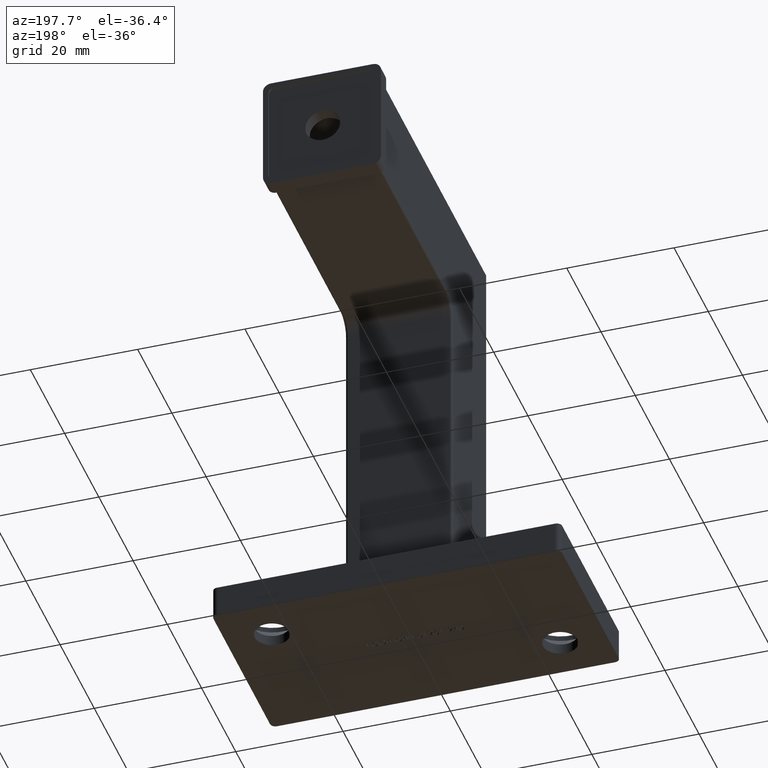
[diagram: clean part render]
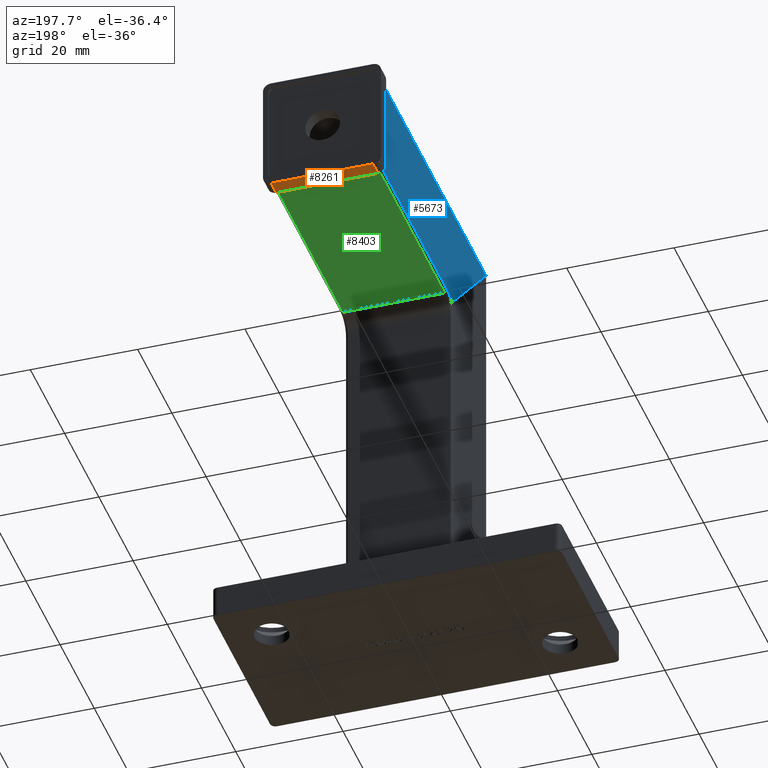
[diagram: same view with three faces highlighted in distinct colors, each labeled with its STEP entity id]
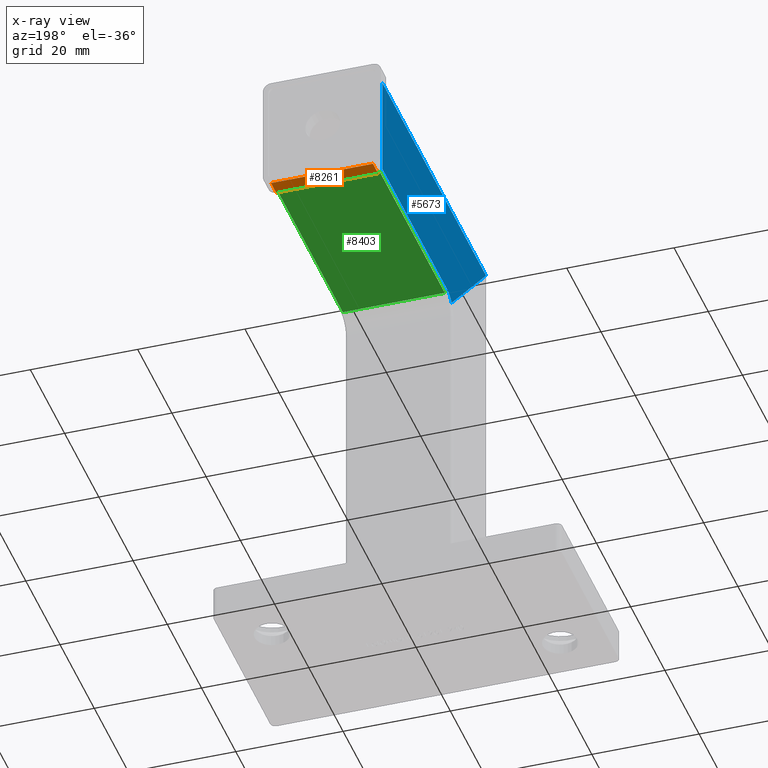
[diagram: x-ray of the same camera — body ghosted, the three highlighted faces saturated]
A machine part, auxiliary view with three faces highlighted in distinct colors.
The next image is the same camera in x-ray (body ghosted, the three faces saturated) — at least one of them is partly hidden behind the body in this view.
Their STEP definitions:

[orange] entity #8261 — the highlighted planar face has unit normal (0, 0, -1).
#506 = CARTESIAN_POINT ( 'NONE',  ( -9.500000000000005329, 51.99999999999999289, 63.99999999999998579 ) ) ;
#2002 = VECTOR ( 'NONE', #7783, 1000.000000000000000 ) ;
#2112 = EDGE_CURVE ( 'NONE', #7233, #5410, #11485, .T. ) ;
#2520 = CARTESIAN_POINT ( 'NONE',  ( -11.00000000000000533, 51.99999999999999289, 63.99999999999998579 ) ) ;
#2649 = DIRECTION ( 'NONE',  ( -1.000000000000000000, 0.000000000000000000, -0.000000000000000000 ) ) ;
#3089 = EDGE_LOOP ( 'NONE', ( #10533, #9796, #11411, #4968 ) ) ;
#3157 = CARTESIAN_POINT ( 'NONE',  ( -11.00000000000000533, 54.99999999999999289, 63.99999999999998579 ) ) ;
#3249 = VERTEX_POINT ( 'NONE', #12267 ) ;
#3403 = AXIS2_PLACEMENT_3D ( 'NONE', #5629, #10825, #2649 ) ;
#3675 = FACE_OUTER_BOUND ( 'NONE', #3089, .T. ) ;
#4264 = EDGE_CURVE ( 'NONE', #3249, #4418, #7500, .T. ) ;
#4418 = VERTEX_POINT ( 'NONE', #11831 ) ;
#4470 = EDGE_CURVE ( 'NONE', #5410, #4418, #10276, .T. ) ;
#4528 = CARTESIAN_POINT ( 'NONE',  ( -9.500000000000005329, 51.99999999999999289, 63.99999999999998579 ) ) ;
#4968 = ORIENTED_EDGE ( 'NONE', *, *, #4470, .T. ) ;
#5410 = VERTEX_POINT ( 'NONE', #4528 ) ;
#5629 = CARTESIAN_POINT ( 'NONE',  ( -11.00000000000000533, 51.99999999999999289, 63.99999999999998579 ) ) ;
#6346 = VECTOR ( 'NONE', #9368, 1000.000000000000000 ) ;
#6700 = CARTESIAN_POINT ( 'NONE',  ( 9.499999999999992895, 51.99999999999999289, 63.99999999999998579 ) ) ;
#6724 = VECTOR ( 'NONE', #9771, 1000.000000000000000 ) ;
#6836 = PLANE ( 'NONE',  #3403 ) ;
#7008 = VECTOR ( 'NONE', #7290, 1000.000000000000000 ) ;
#7233 = VERTEX_POINT ( 'NONE', #6700 ) ;
#7290 = DIRECTION ( 'NONE',  ( -1.000000000000000000, -0.000000000000000000, -0.000000000000000000 ) ) ;
#7500 = LINE ( 'NONE', #3157, #7008 ) ;
#7632 = LINE ( 'NONE', #8303, #6346 ) ;
#7783 = DIRECTION ( 'NONE',  ( 0.000000000000000000, 1.000000000000000000, 0.000000000000000000 ) ) ;
#8261 = ADVANCED_FACE ( 'NONE', ( #3675 ), #6836, .T. ) ;
#8303 = CARTESIAN_POINT ( 'NONE',  ( 9.499999999999992895, 51.99999999999999289, 63.99999999999998579 ) ) ;
#9368 = DIRECTION ( 'NONE',  ( -0.000000000000000000, -1.000000000000000000, -0.000000000000000000 ) ) ;
#9771 = DIRECTION ( 'NONE',  ( -1.000000000000000000, -0.000000000000000000, -0.000000000000000000 ) ) ;
#9796 = ORIENTED_EDGE ( 'NONE', *, *, #12533, .T. ) ;
#10276 = LINE ( 'NONE', #506, #2002 ) ;
#10533 = ORIENTED_EDGE ( 'NONE', *, *, #4264, .F. ) ;
#10825 = DIRECTION ( 'NONE',  ( 0.000000000000000000, 0.000000000000000000, -1.000000000000000000 ) ) ;
#11411 = ORIENTED_EDGE ( 'NONE', *, *, #2112, .T. ) ;
#11485 = LINE ( 'NONE', #2520, #6724 ) ;
#11831 = CARTESIAN_POINT ( 'NONE',  ( -9.500000000000005329, 54.99999999999999289, 63.99999999999998579 ) ) ;
#12267 = CARTESIAN_POINT ( 'NONE',  ( 9.499999999999992895, 54.99999999999999289, 63.99999999999998579 ) ) ;
#12533 = EDGE_CURVE ( 'NONE', #3249, #7233, #7632, .T. ) ;

[blue] entity #5673 — the highlighted planar face has unit normal (1, -0, 0).
#299 = DIRECTION ( 'NONE',  ( 1.734723475976807587E-16, 0.000000000000000000, -1.000000000000000000 ) ) ;
#552 = ORIENTED_EDGE ( 'NONE', *, *, #6668, .F. ) ;
#1491 = DIRECTION ( 'NONE',  ( 1.000000000000000000, -0.000000000000000000, 1.734723475976807587E-16 ) ) ;
#1899 = DIRECTION ( 'NONE',  ( 1.734723475976807587E-16, 0.000000000000000000, -1.000000000000000000 ) ) ;
#2194 = CIRCLE ( 'NONE', #11927, 3.500000000000003109 ) ;
#2227 = CARTESIAN_POINT ( 'NONE',  ( -10.00000000000000178, -9.142135623730959892, 84.14213562373093680 ) ) ;
#2329 = CARTESIAN_POINT ( 'NONE',  ( -9.999999999999998224, -9.142135623730959892, 65.50000000000000000 ) ) ;
#2970 = VERTEX_POINT ( 'NONE', #5776 ) ;
#3533 = PLANE ( 'NONE',  #4859 ) ;
#3694 = EDGE_CURVE ( 'NONE', #6324, #12341, #2194, .T. ) ;
#3701 = VECTOR ( 'NONE', #8452, 1000.000000000000000 ) ;
#4726 = ORIENTED_EDGE ( 'NONE', *, *, #3694, .T. ) ;
#4859 = AXIS2_PLACEMENT_3D ( 'NONE', #6590, #1491, #299 ) ;
#4903 = FACE_OUTER_BOUND ( 'NONE', #6215, .T. ) ;
#4974 = LINE ( 'NONE', #2227, #7058 ) ;
#5044 = DIRECTION ( 'NONE',  ( 0.000000000000000000, 1.000000000000000000, 0.000000000000000000 ) ) ;
#5337 = ORIENTED_EDGE ( 'NONE', *, *, #10600, .T. ) ;
#5556 = LINE ( 'NONE', #12191, #10599 ) ;
#5673 = ADVANCED_FACE ( 'NONE', ( #4903 ), #3533, .F. ) ;
#5711 = DIRECTION ( 'NONE',  ( 1.000000000000000000, -0.000000000000000000, 1.734723475976807587E-16 ) ) ;
#5776 = CARTESIAN_POINT ( 'NONE',  ( -9.999999999999998224, 50.99999999999997868, 65.50000000000000000 ) ) ;
#5794 = CARTESIAN_POINT ( 'NONE',  ( -9.999999999999998224, 12.99999999999999467, 65.50000000000000000 ) ) ;
#6086 = CARTESIAN_POINT ( 'NONE',  ( -9.999999999999998224, 10.52512626584706368, 64.47487373415292211 ) ) ;
#6094 = EDGE_CURVE ( 'NONE', #2970, #6324, #11503, .T. ) ;
#6215 = EDGE_LOOP ( 'NONE', ( #8647, #5337, #12768, #4726, #552 ) ) ;
#6324 = VERTEX_POINT ( 'NONE', #5794 ) ;
#6590 = CARTESIAN_POINT ( 'NONE',  ( -10.00000000000000178, -9.142135623730959892, 84.14213562373093680 ) ) ;
#6668 = EDGE_CURVE ( 'NONE', #8182, #12341, #4974, .T. ) ;
#6823 = CARTESIAN_POINT ( 'NONE',  ( -10.00000000000000178, 50.99999999999997868, 84.49999999999998579 ) ) ;
#6832 = DIRECTION ( 'NONE',  ( 0.000000000000000000, 0.000000000000000000, -1.000000000000000000 ) ) ;
#7058 = VECTOR ( 'NONE', #10652, 1000.000000000000000 ) ;
#7611 = CARTESIAN_POINT ( 'NONE',  ( -10.00000000000000178, -9.500000000000005329, 84.49999999999997158 ) ) ;
#7659 = VECTOR ( 'NONE', #5044, 1000.000000000000000 ) ;
#7708 = CARTESIAN_POINT ( 'NONE',  ( -9.999999999999998224, 12.99999999999999467, 62.00000000000000711 ) ) ;
#8182 = VERTEX_POINT ( 'NONE', #7611 ) ;
#8452 = DIRECTION ( 'NONE',  ( -0.000000000000000000, -1.000000000000000000, -0.000000000000000000 ) ) ;
#8647 = ORIENTED_EDGE ( 'NONE', *, *, #11055, .T. ) ;
#10151 = VERTEX_POINT ( 'NONE', #6823 ) ;
#10599 = VECTOR ( 'NONE', #1899, 1000.000000000000000 ) ;
#10600 = EDGE_CURVE ( 'NONE', #10151, #2970, #5556, .T. ) ;
#10652 = DIRECTION ( 'NONE',  ( 1.226634733346699310E-16, 0.7071067811865475727, -0.7071067811865474617 ) ) ;
#11055 = EDGE_CURVE ( 'NONE', #8182, #10151, #12594, .T. ) ;
#11503 = LINE ( 'NONE', #2329, #3701 ) ;
#11927 = AXIS2_PLACEMENT_3D ( 'NONE', #7708, #5711, #6832 ) ;
#12191 = CARTESIAN_POINT ( 'NONE',  ( -10.00000000000000178, 50.99999999999997868, 84.14213562373093680 ) ) ;
#12341 = VERTEX_POINT ( 'NONE', #6086 ) ;
#12594 = LINE ( 'NONE', #13344, #7659 ) ;
#12768 = ORIENTED_EDGE ( 'NONE', *, *, #6094, .T. ) ;
#13344 = CARTESIAN_POINT ( 'NONE',  ( -10.00000000000000178, -9.142135623730959892, 84.49999999999998579 ) ) ;

[green] entity #8403 — the highlighted planar face has unit normal (0, 0, 1).
#137 = VERTEX_POINT ( 'NONE', #3154 ) ;
#209 = VECTOR ( 'NONE', #6203, 1000.000000000000000 ) ;
#433 = CARTESIAN_POINT ( 'NONE',  ( -9.499999999999998224, 50.99999999999997868, 65.00000000000000000 ) ) ;
#918 = CARTESIAN_POINT ( 'NONE',  ( 9.500000000000001776, 12.99999999999999467, 65.00000000000000000 ) ) ;
#1010 = CARTESIAN_POINT ( 'NONE',  ( 10.00000000000000178, 12.99999999999999467, 65.00000000000000000 ) ) ;
#1255 = ORIENTED_EDGE ( 'NONE', *, *, #11086, .T. ) ;
#1788 = PLANE ( 'NONE',  #11062 ) ;
#2178 = VERTEX_POINT ( 'NONE', #3541 ) ;
#2741 = CARTESIAN_POINT ( 'NONE',  ( 10.00000000000000178, 9.999999999999994671, 65.00000000000000000 ) ) ;
#3154 = CARTESIAN_POINT ( 'NONE',  ( -9.499999999999998224, 12.99999999999999467, 65.00000000000000000 ) ) ;
#3516 = LINE ( 'NONE', #7640, #3994 ) ;
#3541 = CARTESIAN_POINT ( 'NONE',  ( 9.500000000000001776, 50.99999999999997868, 65.00000000000000000 ) ) ;
#3601 = ORIENTED_EDGE ( 'NONE', *, *, #4550, .T. ) ;
#3994 = VECTOR ( 'NONE', #10671, 1000.000000000000000 ) ;
#4014 = CARTESIAN_POINT ( 'NONE',  ( -9.499999999999998224, 9.999999999999994671, 65.00000000000000000 ) ) ;
#4422 = LINE ( 'NONE', #1010, #209 ) ;
#4550 = EDGE_CURVE ( 'NONE', #8936, #137, #4422, .T. ) ;
#4738 = VECTOR ( 'NONE', #10375, 1000.000000000000000 ) ;
#4924 = CARTESIAN_POINT ( 'NONE',  ( 9.500000000000001776, 9.999999999999994671, 65.00000000000000000 ) ) ;
#4957 = DIRECTION ( 'NONE',  ( 0.000000000000000000, 0.000000000000000000, 1.000000000000000000 ) ) ;
#5984 = DIRECTION ( 'NONE',  ( 0.000000000000000000, 1.000000000000000000, -0.000000000000000000 ) ) ;
#6203 = DIRECTION ( 'NONE',  ( -1.000000000000000000, -0.000000000000000000, 0.000000000000000000 ) ) ;
#7481 = VECTOR ( 'NONE', #5984, 1000.000000000000000 ) ;
#7640 = CARTESIAN_POINT ( 'NONE',  ( 10.00000000000000178, 50.99999999999997868, 65.00000000000000000 ) ) ;
#8403 = ADVANCED_FACE ( 'NONE', ( #10982 ), #1788, .F. ) ;
#8626 = EDGE_CURVE ( 'NONE', #12206, #2178, #3516, .T. ) ;
#8936 = VERTEX_POINT ( 'NONE', #918 ) ;
#9159 = EDGE_LOOP ( 'NONE', ( #1255, #12480, #12940, #3601 ) ) ;
#9938 = LINE ( 'NONE', #4924, #4738 ) ;
#10375 = DIRECTION ( 'NONE',  ( -0.000000000000000000, -1.000000000000000000, -0.000000000000000000 ) ) ;
#10671 = DIRECTION ( 'NONE',  ( 1.000000000000000000, 0.000000000000000000, 0.000000000000000000 ) ) ;
#10982 = FACE_OUTER_BOUND ( 'NONE', #9159, .T. ) ;
#11062 = AXIS2_PLACEMENT_3D ( 'NONE', #2741, #4957, #11236 ) ;
#11086 = EDGE_CURVE ( 'NONE', #137, #12206, #13067, .T. ) ;
#11236 = DIRECTION ( 'NONE',  ( 1.000000000000000000, 0.000000000000000000, -0.000000000000000000 ) ) ;
#12033 = EDGE_CURVE ( 'NONE', #2178, #8936, #9938, .T. ) ;
#12206 = VERTEX_POINT ( 'NONE', #433 ) ;
#12480 = ORIENTED_EDGE ( 'NONE', *, *, #8626, .T. ) ;
#12940 = ORIENTED_EDGE ( 'NONE', *, *, #12033, .T. ) ;
#13067 = LINE ( 'NONE', #4014, #7481 ) ;